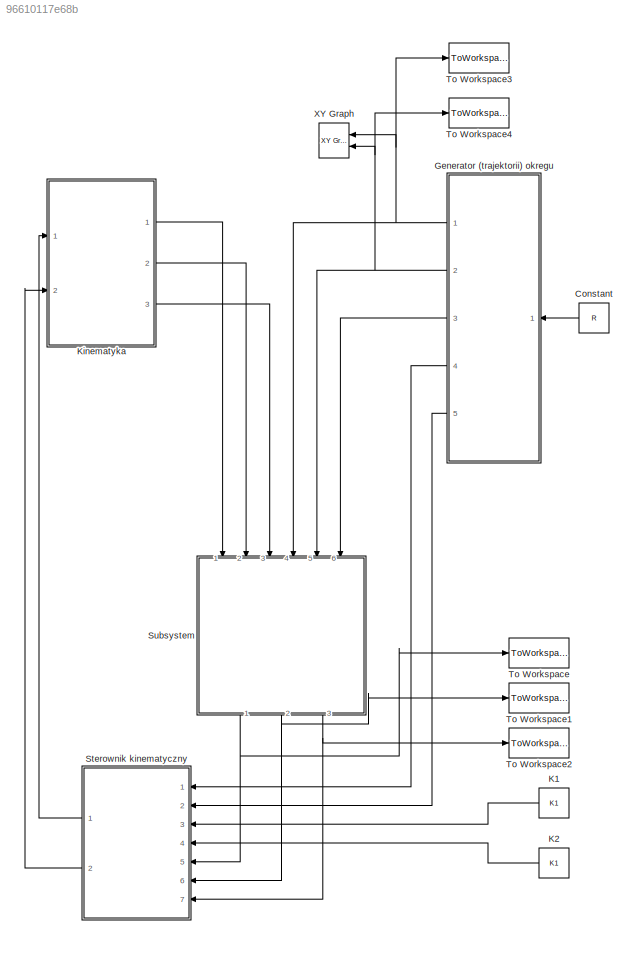
MODEL slx_96610117e68b
KIND model
CONFIG AbsTol = auto
CONFIG FixedStep = auto
CONFIG MaxStep = auto
CONFIG MinStep = auto
CONFIG RelTol = 1e-5
CONFIG SampleTimeConstraint = Unconstrained
CONFIG Solver = ode23
CONFIG SolverMode = SingleTasking
CONFIG SolverName = ode23
CONFIG StartTime = 0.0
CONFIG StopTime = 1000
BLOCK [Constant] Constant
  Value = R
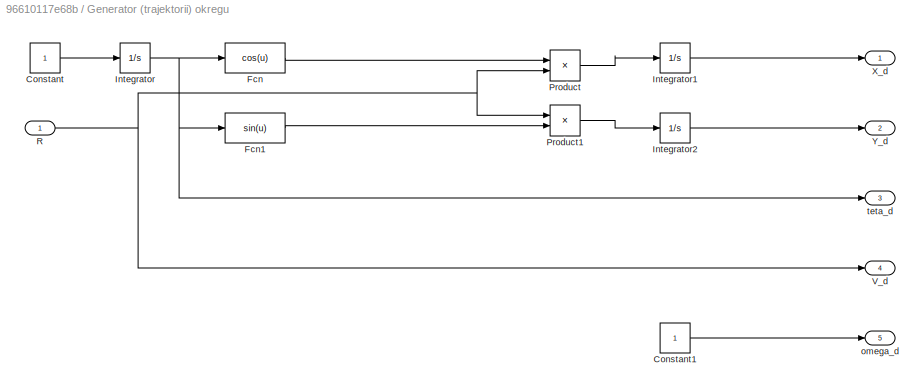
BLOCK [SubSystem] Generator (trajektorii) okregu
  Ports = [1, 5]
  RequestExecContextInheritance = off
BLOCK [Constant] Generator (trajektorii) okregu/Constant
BLOCK [Constant] Generator (trajektorii) okregu/Constant1
BLOCK [Fcn] Generator (trajektorii) okregu/Fcn
  Expr = cos(u)
BLOCK [Fcn] Generator (trajektorii) okregu/Fcn1
  Expr = sin(u)
BLOCK [Integrator] Generator (trajektorii) okregu/Integrator
  Ports = [1, 1]
BLOCK [Integrator] Generator (trajektorii) okregu/Integrator1
  Ports = [1, 1]
BLOCK [Integrator] Generator (trajektorii) okregu/Integrator2
  InitialCondition = -R
  Ports = [1, 1]
BLOCK [Product] Generator (trajektorii) okregu/Product
  InputSameDT = off
  OutDataTypeStr = Inherit: Inherit via internal rule
  Ports = [2, 1]
  RndMeth = Floor
  SaturateOnIntegerOverflow = off
BLOCK [Product] Generator (trajektorii) okregu/Product1
  InputSameDT = off
  OutDataTypeStr = Inherit: Inherit via internal rule
  Ports = [2, 1]
  RndMeth = Floor
  SaturateOnIntegerOverflow = off
BLOCK [Inport] Generator (trajektorii) okregu/R
  IconDisplay = Port number
BLOCK [Outport] Generator (trajektorii) okregu/V_d
  IconDisplay = Port number
  Port = 4
BLOCK [Outport] Generator (trajektorii) okregu/X_d
  IconDisplay = Port number
BLOCK [Outport] Generator (trajektorii) okregu/Y_d
  IconDisplay = Port number
  Port = 2
BLOCK [Outport] Generator (trajektorii) okregu/omega_d
  IconDisplay = Port number
  Port = 5
BLOCK [Outport] Generator (trajektorii) okregu/teta_d
  IconDisplay = Port number
  Port = 3
BLOCK [Constant] K1
  Value = K1
BLOCK [Constant] K2
  Value = K1
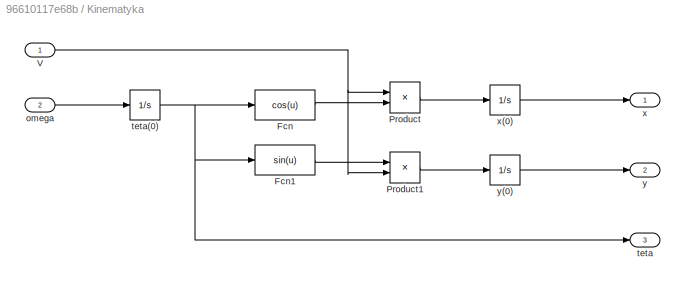
BLOCK [SubSystem] Kinematyka
  Ports = [2, 3]
  RequestExecContextInheritance = off
BLOCK [Fcn] Kinematyka/Fcn
  Expr = cos(u)
BLOCK [Fcn] Kinematyka/Fcn1
  Expr = sin(u)
BLOCK [Product] Kinematyka/Product
  InputSameDT = off
  OutDataTypeStr = Inherit: Inherit via internal rule
  Ports = [2, 1]
  RndMeth = Floor
  SaturateOnIntegerOverflow = off
BLOCK [Product] Kinematyka/Product1
  InputSameDT = off
  OutDataTypeStr = Inherit: Inherit via internal rule
  Ports = [2, 1]
  RndMeth = Floor
  SaturateOnIntegerOverflow = off
BLOCK [Inport] Kinematyka/V
  IconDisplay = Port number
BLOCK [Inport] Kinematyka/omega
  IconDisplay = Port number
  Port = 2
BLOCK [Outport] Kinematyka/teta
  IconDisplay = Port number
  Port = 3
BLOCK [Integrator] Kinematyka/teta(0)
  Ports = [1, 1]
BLOCK [Outport] Kinematyka/x
  IconDisplay = Port number
BLOCK [Integrator] Kinematyka/x(0)
  Ports = [1, 1]
BLOCK [Outport] Kinematyka/y
  IconDisplay = Port number
  Port = 2
BLOCK [Integrator] Kinematyka/y(0)
  InitialCondition = -R
  Ports = [1, 1]
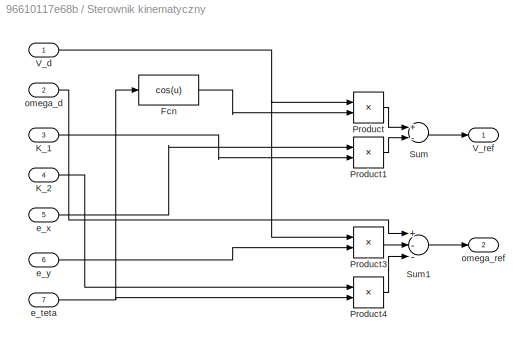
BLOCK [SubSystem] Sterownik kinematyczny
  Ports = [7, 2]
  RequestExecContextInheritance = off
BLOCK [Fcn] Sterownik kinematyczny/Fcn
  Expr = cos(u)
BLOCK [Inport] Sterownik kinematyczny/K_1
  IconDisplay = Port number
  Port = 3
BLOCK [Inport] Sterownik kinematyczny/K_2
  IconDisplay = Port number
  Port = 4
BLOCK [Product] Sterownik kinematyczny/Product
  InputSameDT = off
  OutDataTypeStr = Inherit: Inherit via internal rule
  Ports = [2, 1]
  RndMeth = Floor
  SaturateOnIntegerOverflow = off
BLOCK [Product] Sterownik kinematyczny/Product1
  InputSameDT = off
  OutDataTypeStr = Inherit: Inherit via internal rule
  Ports = [2, 1]
  RndMeth = Floor
  SaturateOnIntegerOverflow = off
BLOCK [Product] Sterownik kinematyczny/Product3
  InputSameDT = off
  OutDataTypeStr = Inherit: Inherit via internal rule
  Ports = [2, 1]
  RndMeth = Floor
  SaturateOnIntegerOverflow = off
BLOCK [Product] Sterownik kinematyczny/Product4
  InputSameDT = off
  OutDataTypeStr = Inherit: Inherit via internal rule
  Ports = [2, 1]
  RndMeth = Floor
  SaturateOnIntegerOverflow = off
BLOCK [Sum] Sterownik kinematyczny/Sum
  InputSameDT = off
  Inputs = +-
  OutDataTypeStr = Inherit: Inherit via internal rule
  Ports = [2, 1]
  SaturateOnIntegerOverflow = off
BLOCK [Sum] Sterownik kinematyczny/Sum1
  InputSameDT = off
  Inputs = +--
  OutDataTypeStr = Inherit: Inherit via internal rule
  Ports = [3, 1]
  SaturateOnIntegerOverflow = off
BLOCK [Inport] Sterownik kinematyczny/V_d
  IconDisplay = Port number
BLOCK [Outport] Sterownik kinematyczny/V_ref
  IconDisplay = Port number
BLOCK [Inport] Sterownik kinematyczny/e_teta
  IconDisplay = Port number
  Port = 7
BLOCK [Inport] Sterownik kinematyczny/e_x
  IconDisplay = Port number
  Port = 5
BLOCK [Inport] Sterownik kinematyczny/e_y
  IconDisplay = Port number
  Port = 6
BLOCK [Inport] Sterownik kinematyczny/omega_d
  IconDisplay = Port number
  Port = 2
BLOCK [Outport] Sterownik kinematyczny/omega_ref
  IconDisplay = Port number
  Port = 2
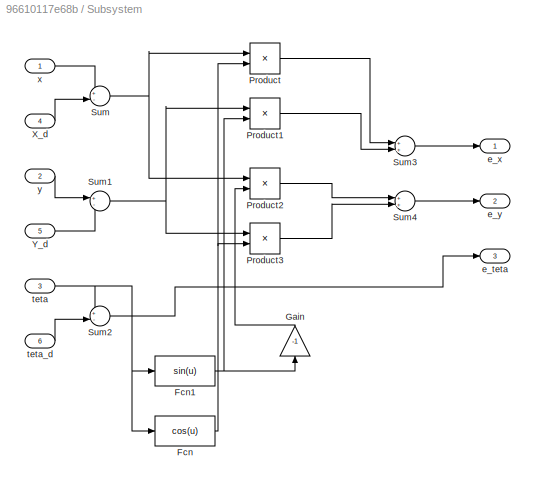
BLOCK [SubSystem] Subsystem
  Ports = [6, 3]
  RequestExecContextInheritance = off
BLOCK [Fcn] Subsystem/Fcn
  Expr = cos(u)
BLOCK [Fcn] Subsystem/Fcn1
  Expr = sin(u)
BLOCK [Gain] Subsystem/Gain
  Gain = -1
  OutDataTypeStr = Inherit: Inherit via internal rule
  ParamDataTypeStr = Inherit: Inherit via internal rule
  SaturateOnIntegerOverflow = off
BLOCK [Product] Subsystem/Product
  InputSameDT = off
  OutDataTypeStr = Inherit: Inherit via internal rule
  Ports = [2, 1]
  RndMeth = Floor
  SaturateOnIntegerOverflow = off
BLOCK [Product] Subsystem/Product1
  InputSameDT = off
  OutDataTypeStr = Inherit: Inherit via internal rule
  Ports = [2, 1]
  RndMeth = Floor
  SaturateOnIntegerOverflow = off
BLOCK [Product] Subsystem/Product2
  InputSameDT = off
  OutDataTypeStr = Inherit: Inherit via internal rule
  Ports = [2, 1]
  RndMeth = Floor
  SaturateOnIntegerOverflow = off
BLOCK [Product] Subsystem/Product3
  InputSameDT = off
  OutDataTypeStr = Inherit: Inherit via internal rule
  Ports = [2, 1]
  RndMeth = Floor
  SaturateOnIntegerOverflow = off
BLOCK [Sum] Subsystem/Sum
  IconShape = round
  InputSameDT = off
  Inputs = +-
  OutDataTypeStr = Inherit: Inherit via internal rule
  Ports = [2, 1]
  SaturateOnIntegerOverflow = off
BLOCK [Sum] Subsystem/Sum1
  IconShape = round
  InputSameDT = off
  Inputs = +-
  OutDataTypeStr = Inherit: Inherit via internal rule
  Ports = [2, 1]
  SaturateOnIntegerOverflow = off
BLOCK [Sum] Subsystem/Sum2
  IconShape = round
  InputSameDT = off
  Inputs = +-
  OutDataTypeStr = Inherit: Inherit via internal rule
  Ports = [2, 1]
  SaturateOnIntegerOverflow = off
BLOCK [Sum] Subsystem/Sum3
  InputSameDT = off
  OutDataTypeStr = Inherit: Inherit via internal rule
  Ports = [2, 1]
  SaturateOnIntegerOverflow = off
BLOCK [Sum] Subsystem/Sum4
  InputSameDT = off
  OutDataTypeStr = Inherit: Inherit via internal rule
  Ports = [2, 1]
  SaturateOnIntegerOverflow = off
BLOCK [Inport] Subsystem/X_d
  IconDisplay = Port number
  Port = 4
BLOCK [Inport] Subsystem/Y_d
  IconDisplay = Port number
  Port = 5
BLOCK [Outport] Subsystem/e_teta
  IconDisplay = Port number
  Port = 3
BLOCK [Outport] Subsystem/e_x
  IconDisplay = Port number
BLOCK [Outport] Subsystem/e_y
  IconDisplay = Port number
  Port = 2
BLOCK [Inport] Subsystem/teta
  IconDisplay = Port number
  Port = 3
BLOCK [Inport] Subsystem/teta_d
  IconDisplay = Port number
  Port = 6
BLOCK [Inport] Subsystem/x
  IconDisplay = Port number
BLOCK [Inport] Subsystem/y
  IconDisplay = Port number
  Port = 2
BLOCK [ToWorkspace] To Workspace
  MaxDataPoints = inf
  Ports = [1]
  SampleTime = -1
  SaveFormat = Timeseries
  VariableName = x_out
BLOCK [ToWorkspace] To Workspace1
  MaxDataPoints = inf
  Ports = [1]
  SampleTime = -1
  SaveFormat = Timeseries
  VariableName = y_out
BLOCK [ToWorkspace] To Workspace2
  MaxDataPoints = inf
  Ports = [1]
  SampleTime = -1
  SaveFormat = Timeseries
  VariableName = teta_out
BLOCK [ToWorkspace] To Workspace3
  MaxDataPoints = inf
  Ports = [1]
  SampleTime = -1
  SaveFormat = Timeseries
  VariableName = x
BLOCK [ToWorkspace] To Workspace4
  MaxDataPoints = inf
  Ports = [1]
  SampleTime = -1
  SaveFormat = Timeseries
  VariableName = y
BLOCK [Reference] XY Graph  REF=simulink/Sinks/XY Graph
  Ports = [2]
  SourceBlock = simulink/Sinks/XY Graph
  SourceType = XY scope.
LINE Constant:1 -> Generator (trajektorii) okregu:1
LINE Generator (trajektorii) okregu/Constant1:1 -> Generator (trajektorii) okregu/omega_d:1
LINE Generator (trajektorii) okregu/Constant:1 -> Generator (trajektorii) okregu/Integrator:1
LINE Generator (trajektorii) okregu/Fcn1:1 -> Generator (trajektorii) okregu/Product1:2
LINE Generator (trajektorii) okregu/Fcn:1 -> Generator (trajektorii) okregu/Product:1
LINE Generator (trajektorii) okregu/Integrator1:1 -> Generator (trajektorii) okregu/X_d:1
LINE Generator (trajektorii) okregu/Integrator2:1 -> Generator (trajektorii) okregu/Y_d:1
NET Generator (trajektorii) okregu/Integrator:1 -> Generator (trajektorii) okregu/Fcn1:1, Generator (trajektorii) okregu/Fcn:1, Generator (trajektorii) okregu/teta_d:1
LINE Generator (trajektorii) okregu/Product1:1 -> Generator (trajektorii) okregu/Integrator2:1
LINE Generator (trajektorii) okregu/Product:1 -> Generator (trajektorii) okregu/Integrator1:1
NET Generator (trajektorii) okregu/R:1 -> Generator (trajektorii) okregu/Product1:1, Generator (trajektorii) okregu/Product:2, Generator (trajektorii) okregu/V_d:1
NET Generator (trajektorii) okregu:1 -> Subsystem:4, To Workspace3:1, XY Graph:1
NET Generator (trajektorii) okregu:2 -> Subsystem:5, To Workspace4:1, XY Graph:2
LINE Generator (trajektorii) okregu:3 -> Subsystem:6
LINE Generator (trajektorii) okregu:4 -> Sterownik kinematyczny:1
LINE Generator (trajektorii) okregu:5 -> Sterownik kinematyczny:2
LINE K1:1 -> Sterownik kinematyczny:3
LINE K2:1 -> Sterownik kinematyczny:4
LINE Kinematyka/Fcn1:1 -> Kinematyka/Product1:1
LINE Kinematyka/Fcn:1 -> Kinematyka/Product:2
LINE Kinematyka/Product1:1 -> Kinematyka/y(0):1
LINE Kinematyka/Product:1 -> Kinematyka/x(0):1
NET Kinematyka/V:1 -> Kinematyka/Product1:2, Kinematyka/Product:1
LINE Kinematyka/omega:1 -> Kinematyka/teta(0):1
NET Kinematyka/teta(0):1 -> Kinematyka/Fcn1:1, Kinematyka/Fcn:1, Kinematyka/teta:1
LINE Kinematyka/x(0):1 -> Kinematyka/x:1
LINE Kinematyka/y(0):1 -> Kinematyka/y:1
LINE Kinematyka:1 -> Subsystem:1
LINE Kinematyka:2 -> Subsystem:2
LINE Kinematyka:3 -> Subsystem:3
LINE Sterownik kinematyczny/Fcn:1 -> Sterownik kinematyczny/Product:2
LINE Sterownik kinematyczny/K_1:1 -> Sterownik kinematyczny/Product1:2
LINE Sterownik kinematyczny/K_2:1 -> Sterownik kinematyczny/Product4:1
LINE Sterownik kinematyczny/Product1:1 -> Sterownik kinematyczny/Sum:2
LINE Sterownik kinematyczny/Product3:1 -> Sterownik kinematyczny/Sum1:2
LINE Sterownik kinematyczny/Product4:1 -> Sterownik kinematyczny/Sum1:3
LINE Sterownik kinematyczny/Product:1 -> Sterownik kinematyczny/Sum:1
LINE Sterownik kinematyczny/Sum1:1 -> Sterownik kinematyczny/omega_ref:1
LINE Sterownik kinematyczny/Sum:1 -> Sterownik kinematyczny/V_ref:1
NET Sterownik kinematyczny/V_d:1 -> Sterownik kinematyczny/Product3:1, Sterownik kinematyczny/Product:1
NET Sterownik kinematyczny/e_teta:1 -> Sterownik kinematyczny/Fcn:1, Sterownik kinematyczny/Product4:2
LINE Sterownik kinematyczny/e_x:1 -> Sterownik kinematyczny/Product1:1
LINE Sterownik kinematyczny/e_y:1 -> Sterownik kinematyczny/Product3:2
LINE Sterownik kinematyczny/omega_d:1 -> Sterownik kinematyczny/Sum1:1
LINE Sterownik kinematyczny:1 -> Kinematyka:1
LINE Sterownik kinematyczny:2 -> Kinematyka:2
NET Subsystem/Fcn1:1 -> Subsystem/Gain:1, Subsystem/Product1:2
NET Subsystem/Fcn:1 -> Subsystem/Product3:2, Subsystem/Product:2
LINE Subsystem/Gain:1 -> Subsystem/Product2:2
LINE Subsystem/Product1:1 -> Subsystem/Sum3:2
LINE Subsystem/Product2:1 -> Subsystem/Sum4:1
LINE Subsystem/Product3:1 -> Subsystem/Sum4:2
LINE Subsystem/Product:1 -> Subsystem/Sum3:1
NET Subsystem/Sum1:1 -> Subsystem/Product1:1, Subsystem/Product3:1
LINE Subsystem/Sum2:1 -> Subsystem/e_teta:1
LINE Subsystem/Sum3:1 -> Subsystem/e_x:1
LINE Subsystem/Sum4:1 -> Subsystem/e_y:1
NET Subsystem/Sum:1 -> Subsystem/Product2:1, Subsystem/Product:1
LINE Subsystem/X_d:1 -> Subsystem/Sum:2
LINE Subsystem/Y_d:1 -> Subsystem/Sum1:2
NET Subsystem/teta:1 -> Subsystem/Fcn1:1, Subsystem/Fcn:1, Subsystem/Sum2:1
LINE Subsystem/teta_d:1 -> Subsystem/Sum2:2
LINE Subsystem/x:1 -> Subsystem/Sum:1
LINE Subsystem/y:1 -> Subsystem/Sum1:1
NET Subsystem:1 -> Sterownik kinematyczny:5, To Workspace:1
NET Subsystem:2 -> Sterownik kinematyczny:6, To Workspace1:1
NET Subsystem:3 -> Sterownik kinematyczny:7, To Workspace2:1
note: NET lines group one-source signal fan-out (src -> all destinations, sorted); 1:1 wires keep LINE
